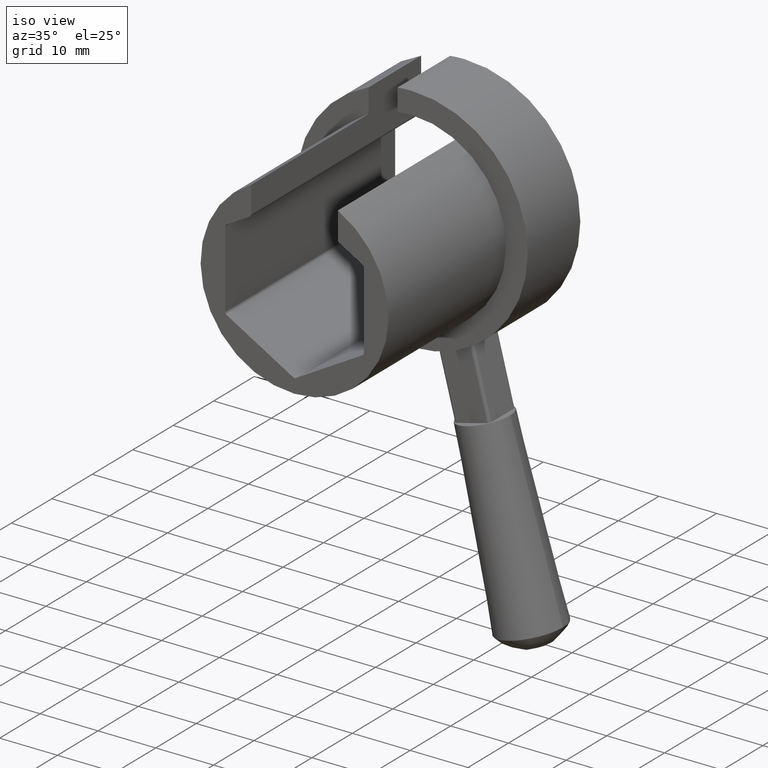
[diagram: clean part render]
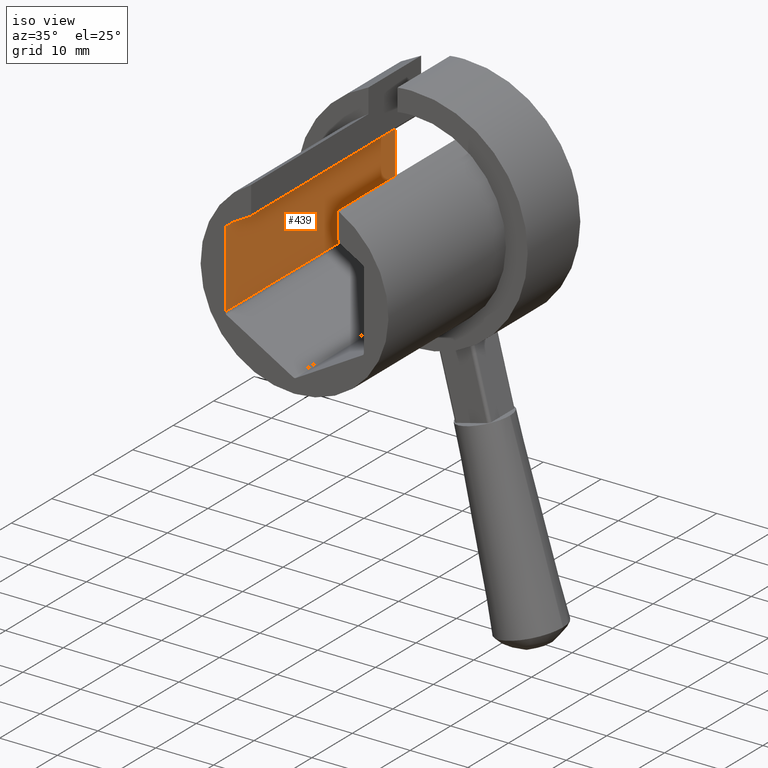
[diagram: same view with one face highlighted and labeled with its STEP entity id]
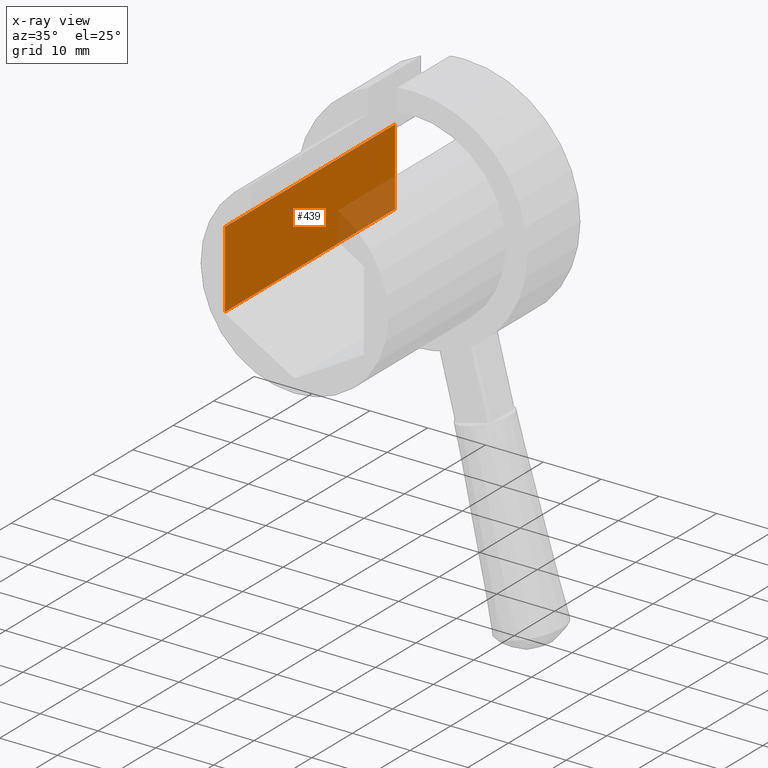
[diagram: x-ray of the same camera — body ghosted, the highlighted face saturated]
A machine part, iso view. The second image highlights one B-rep face of the part: STEP entity #439.
The next image is the same camera in x-ray: the body ghosted, the highlighted face saturated — about 13% of this face is hidden behind the body in this view.
In plain terms, the highlighted planar face has unit normal (-1, 0, 0).
Its self-contained STEP definition (entity closure, byte-faithful):
#246 = ORIENTED_EDGE ( 'NONE', *, *, #247, .T. ) ;
#247 = EDGE_CURVE ( 'NONE', #356, #468, #845, .T. ) ;
#248 = ORIENTED_EDGE ( 'NONE', *, *, #467, .F. ) ;
#252 = VERTEX_POINT ( 'NONE', #820 ) ;
#356 = VERTEX_POINT ( 'NONE', #973 ) ;
#373 = EDGE_CURVE ( 'NONE', #356, #374, #1025, .T. ) ;
#374 = VERTEX_POINT ( 'NONE', #1021 ) ;
#439 = ADVANCED_FACE ( 'NONE', ( #1284 ), #1283, .F. ) ;
#440 = EDGE_LOOP ( 'NONE', ( #441, #246, #248, #479 ) ) ;
#441 = ORIENTED_EDGE ( 'NONE', *, *, #373, .F. ) ;
#467 = EDGE_CURVE ( 'NONE', #252, #468, #1194, .T. ) ;
#468 = VERTEX_POINT ( 'NONE', #1190 ) ;
#479 = ORIENTED_EDGE ( 'NONE', *, *, #480, .T. ) ;
#480 = EDGE_CURVE ( 'NONE', #252, #374, #1259, .T. ) ;
#820 = CARTESIAN_POINT ( 'NONE',  ( -12.00000000000000200, 0.0000000000000000000, -6.639528095680697500 ) ) ;
#842 = DIRECTION ( 'NONE',  ( 0.0000000000000000000, -1.000000000000000000, 0.0000000000000000000 ) ) ;
#843 = VECTOR ( 'NONE', #842, 1000.000000000000000 ) ;
#844 = CARTESIAN_POINT ( 'NONE',  ( -12.00000000000000200, 0.0000000000000000000, 6.639528095680697500 ) ) ;
#845 = LINE ( 'NONE', #844, #843 ) ;
#973 = CARTESIAN_POINT ( 'NONE',  ( -12.00000000000000200, 42.00000000000000000, 6.639528095680697500 ) ) ;
#1021 = CARTESIAN_POINT ( 'NONE',  ( -12.00000000000000200, 42.00000000000000000, -6.639528095680693000 ) ) ;
#1022 = DIRECTION ( 'NONE',  ( 0.0000000000000000000, 0.0000000000000000000, -1.000000000000000000 ) ) ;
#1023 = VECTOR ( 'NONE', #1022, 1000.000000000000000 ) ;
#1024 = CARTESIAN_POINT ( 'NONE',  ( -12.00000000000000200, 42.00000000000000000, 6.928203230275509700 ) ) ;
#1025 = LINE ( 'NONE', #1024, #1023 ) ;
#1190 = CARTESIAN_POINT ( 'NONE',  ( -12.00000000000000200, 0.0000000000000000000, 6.639528095680697500 ) ) ;
#1191 = DIRECTION ( 'NONE',  ( 0.0000000000000000000, 0.0000000000000000000, 1.000000000000000000 ) ) ;
#1192 = VECTOR ( 'NONE', #1191, 1000.000000000000000 ) ;
#1193 = CARTESIAN_POINT ( 'NONE',  ( -12.00000000000000200, 0.0000000000000000000, 0.0000000000000000000 ) ) ;
#1194 = LINE ( 'NONE', #1193, #1192 ) ;
#1252 = DIRECTION ( 'NONE',  ( 0.0000000000000000000, 1.000000000000000000, 0.0000000000000000000 ) ) ;
#1253 = VECTOR ( 'NONE', #1252, 1000.000000000000000 ) ;
#1254 = CARTESIAN_POINT ( 'NONE',  ( -12.00000000000000200, 42.00000000000000000, -6.639528095680697500 ) ) ;
#1259 = LINE ( 'NONE', #1254, #1253 ) ;
#1279 = DIRECTION ( 'NONE',  ( 0.0000000000000000000, 0.0000000000000000000, 1.000000000000000000 ) ) ;
#1280 = DIRECTION ( 'NONE',  ( -1.000000000000000000, 0.0000000000000000000, 0.0000000000000000000 ) ) ;
#1281 = CARTESIAN_POINT ( 'NONE',  ( -12.00000000000000200, 42.00000000000000000, 6.928203230275509700 ) ) ;
#1282 = AXIS2_PLACEMENT_3D ( 'NONE', #1281, #1280, #1279 ) ;
#1283 = PLANE ( 'NONE',  #1282 ) ;
#1284 = FACE_OUTER_BOUND ( 'NONE', #440, .T. ) ;